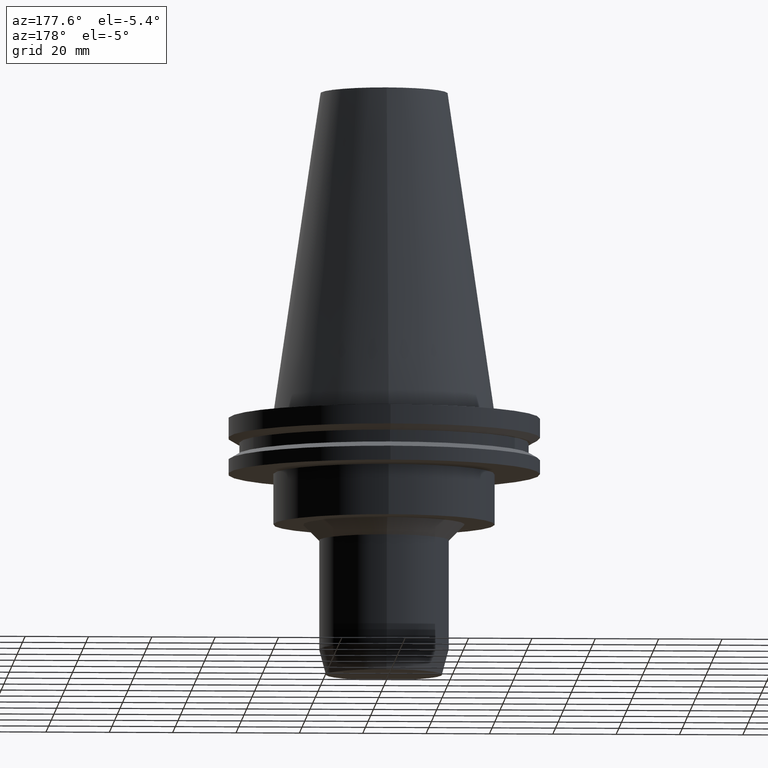
[diagram: clean part render]
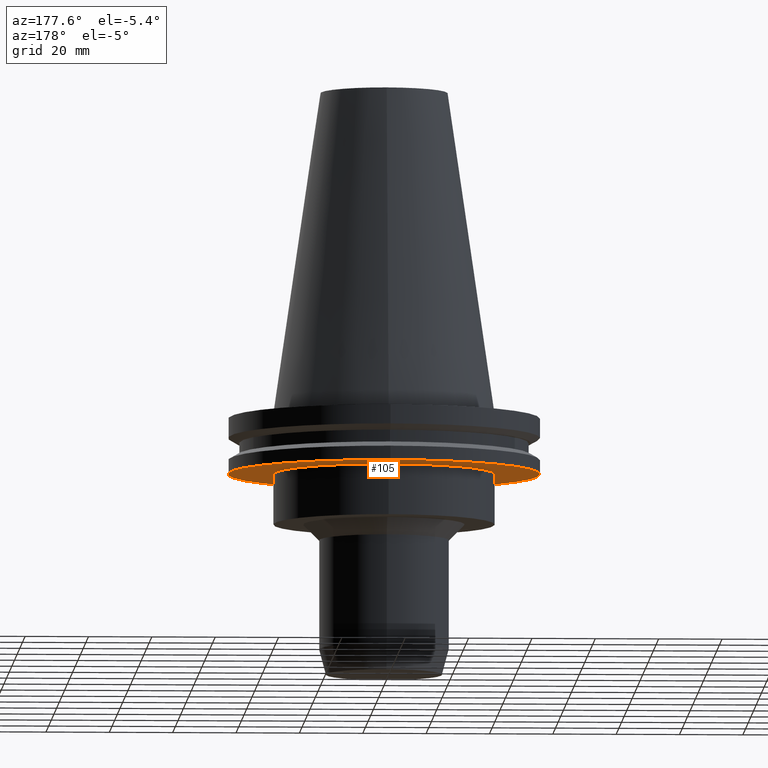
[diagram: same view with one face highlighted and labeled with its STEP entity id]
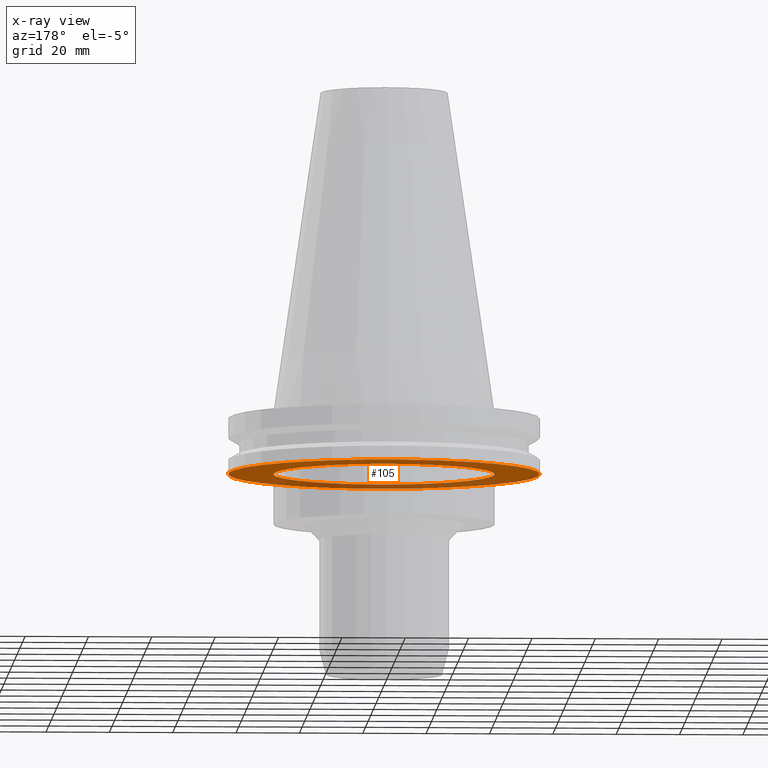
[diagram: x-ray of the same camera — body ghosted, the highlighted face saturated]
A machine part, auxiliary view. The second image highlights one B-rep face of the part: STEP entity #105.
The next image is the same camera in x-ray: the body ghosted, the highlighted face saturated — about 31% of this face is hidden behind the body in this view.
In plain terms, the highlighted planar face has unit normal (0, 0, -1).
Its self-contained STEP definition (entity closure, byte-faithful):
#71=EDGE_CURVE('Unnamed[1]',#184,#184,#185,.T.);
#105=ADVANCED_FACE('Unnamed[1]',(#236,#237),#238,.T.);
#132=EDGE_CURVE('Unnamed[1]',#278,#278,#279,.T.);
#184=VERTEX_POINT('',#338);
#185=CIRCLE('',#339,49.2124999999999);
#236=FACE_BOUND('',#403,.T.);
#237=FACE_OUTER_BOUND('',#404,.T.);
#238=PLANE('',#405);
#278=VERTEX_POINT('',#455);
#279=CIRCLE('',#456,34.925);
#338=CARTESIAN_POINT('',(1.16647607618786E-015,49.2124999999999,-19.0500000000001));
#339=AXIS2_PLACEMENT_3D('',#510,#511,#512);
#403=EDGE_LOOP('',(#569));
#404=EDGE_LOOP('',(#570));
#405=AXIS2_PLACEMENT_3D('',#571,#572,#573);
#455=CARTESIAN_POINT('',(1.16647607618786E-015,34.925,-19.0500000000001));
#456=AXIS2_PLACEMENT_3D('',#614,#615,#616);
#510=CARTESIAN_POINT('',(1.16647607618786E-015,2.0163113471395E-014,-19.0500000000001));
#511=DIRECTION('',(6.12323399573677E-017,7.22462196173164E-016,-1.0));
#512=DIRECTION('',(-4.90652035331884E-032,1.0,7.22462196173164E-016));
#569=ORIENTED_EDGE('',*,*,#132,.F.);
#570=ORIENTED_EDGE('',*,*,#71,.T.);
#571=CARTESIAN_POINT('',(1.16647607618786E-015,42.06875,-19.0500000000001));
#572=DIRECTION('',(6.12323399573677E-017,1.22464679914735E-016,-1.0));
#573=DIRECTION('',(-1.23259516440783E-032,1.0,1.22464679914735E-016));
#614=CARTESIAN_POINT('',(1.16647607618786E-015,2.0163113471395E-014,-19.0500000000001));
#615=DIRECTION('',(6.12323399573677E-017,7.22462196173145E-016,-1.0));
#616=DIRECTION('',(-4.90652035331901E-032,1.0,7.22462196173145E-016));